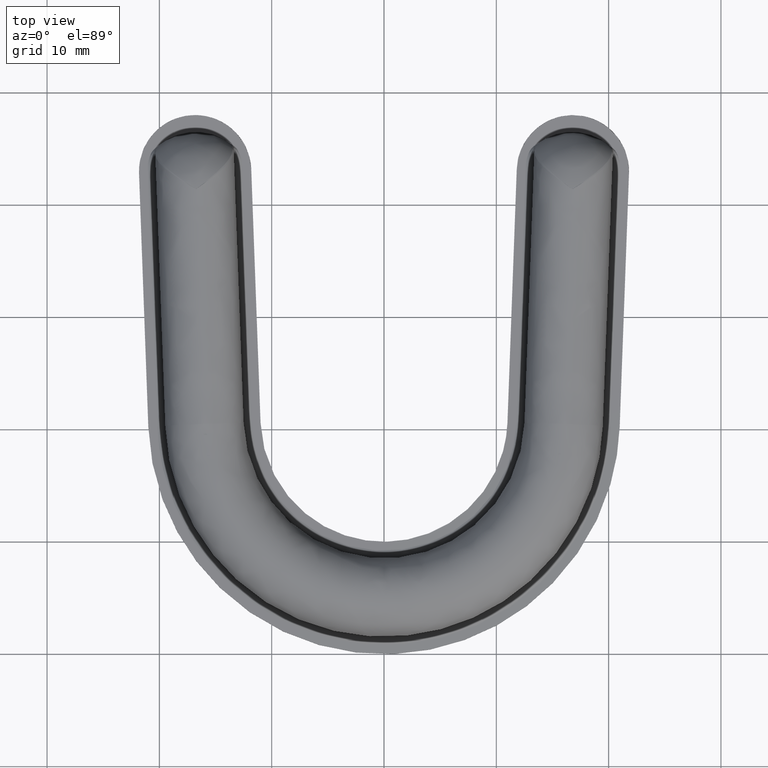
[diagram: clean part render]
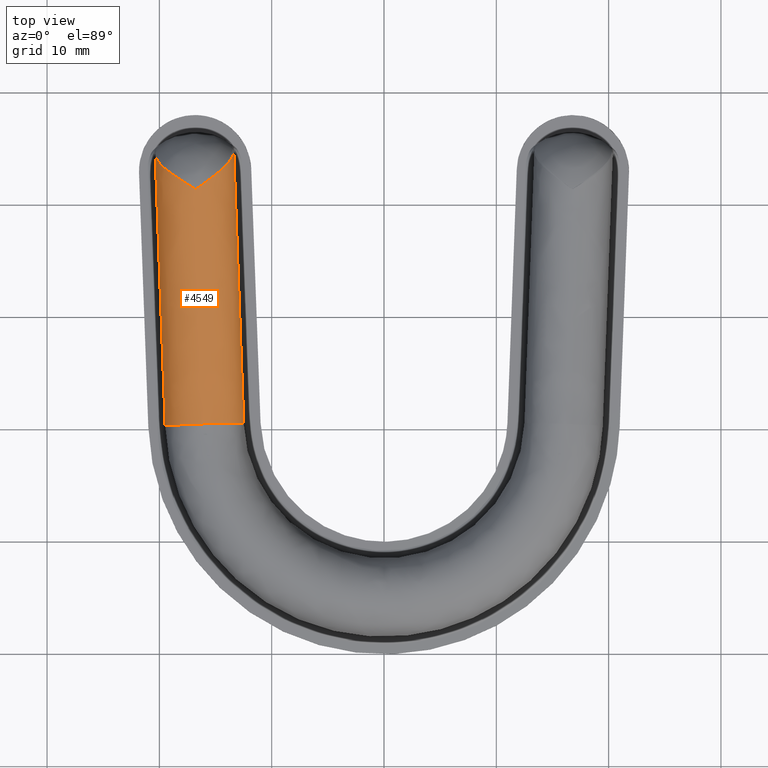
[diagram: same view with one face highlighted and labeled with its STEP entity id]
A machine part, top view. The second image highlights one B-rep face of the part: STEP entity #4549.
In plain terms, the highlighted face is a freeform B-spline surface patch.
Its self-contained STEP definition (entity closure, byte-faithful):
#2112=CARTESIAN_POINT('',(-16.754516114764598,41.300000246812402,6.0));
#2113=VERTEX_POINT('',#2112);
#2114=CARTESIAN_POINT('',(-20.372942667304500,44.468121021932902,2.500000000000000));
#2115=VERTEX_POINT('',#2114);
#2116=CARTESIAN_POINT('',(-16.754516114764598,41.300000246812402,6.0));
#2117=CARTESIAN_POINT('',(-16.782802582133630,41.317389389556482,5.999999999952378));
#2118=CARTESIAN_POINT('',(-16.811632465670261,41.335112370053032,5.999667302176053));
#2119=CARTESIAN_POINT('',(-16.868946240694459,41.370353576724582,5.998326717878334));
#2120=CARTESIAN_POINT('',(-16.897596496718990,41.387974032361178,5.997320384735197));
#2121=CARTESIAN_POINT('',(-16.983474603837760,41.440814295865330,5.993295827587855));
#2122=CARTESIAN_POINT('',(-17.040646230696819,41.476023086388658,5.989272173197057));
#2123=CARTESIAN_POINT('',(-17.211877523912950,41.581663798899847,5.973178511146691));
#2124=CARTESIAN_POINT('',(-17.325307453028209,41.651897467126823,5.957111312028850));
#2125=CARTESIAN_POINT('',(-17.549663827990280,41.791815146958193,5.914576607877827));
#2126=CARTESIAN_POINT('',(-17.660724665483329,41.861581053779091,5.888097273805047));
#2127=CARTESIAN_POINT('',(-17.825469790792450,41.966210206306982,5.840559503001300));
#2128=CARTESIAN_POINT('',(-17.880076798264248,42.001083272231313,5.823408907174088));
#2129=CARTESIAN_POINT('',(-17.988641575157189,42.070868221722513,5.786479307185945));
#2130=CARTESIAN_POINT('',(-18.042696321848329,42.105843547782783,5.766660750550980));
#2131=CARTESIAN_POINT('',(-18.309898734683951,42.280047510552990,5.661463967373337));
#2132=CARTESIAN_POINT('',(-18.513541862228479,42.417030103409978,5.558137154894050));
#2133=CARTESIAN_POINT('',(-18.802903839322450,42.621130241985362,5.375406070826515));
#2134=CARTESIAN_POINT('',(-18.896662469343472,42.688930994251827,5.309849218476309));
#2135=CARTESIAN_POINT('',(-19.033021621566920,42.790546408604250,5.204462478785839));
#2136=CARTESIAN_POINT('',(-19.077760616700871,42.824403962717142,5.168156861401357));
#2137=CARTESIAN_POINT('',(-19.165758791210660,42.892135826940432,5.093160012744462));
#2138=CARTESIAN_POINT('',(-19.209104424614580,42.926079525365687,5.054386282803243));
#2139=CARTESIAN_POINT('',(-19.420887317293712,43.095081482723870,4.855478711049133));
#2140=CARTESIAN_POINT('',(-19.573552528740681,43.227131451441942,4.681456855730632));
#2141=CARTESIAN_POINT('',(-19.776535709117262,43.422684525638793,4.398988882901743));
#2142=CARTESIAN_POINT('',(-19.839839801298002,43.487443986000343,4.301241098006154));
#2143=CARTESIAN_POINT('',(-19.957298623896179,43.616455721109148,4.098476691031345));
#2144=CARTESIAN_POINT('',(-20.011578880391749,43.680884575070351,3.993150160682541));
#2145=CARTESIAN_POINT('',(-20.084964864256499,43.776500122556349,3.831090498791101));
#2146=CARTESIAN_POINT('',(-20.108136926017931,43.808261771446723,3.776291532584735));
#2147=CARTESIAN_POINT('',(-20.151585259787531,43.871207890909119,3.665848188035428));
#2148=CARTESIAN_POINT('',(-20.171876014315728,43.902405775525231,3.610184342074302));
#2149=CARTESIAN_POINT('',(-20.228460629108952,43.995249649651363,3.441908114617712));
#2150=CARTESIAN_POINT('',(-20.260475472677872,44.056147386656313,3.328013639119325));
#2151=CARTESIAN_POINT('',(-20.339188874740731,44.236383504141152,2.981434201529449));
#2152=CARTESIAN_POINT('',(-20.368734670211310,44.353272134910362,2.743894330306517));
#2153=CARTESIAN_POINT('',(-20.372942667304500,44.468121021932902,2.500000000000000));
#2154=B_SPLINE_CURVE_WITH_KNOTS('',3,(#2116,#2117,#2118,#2119,#2120,#2121,#2122,#2123,#2124,#2125,#2126,#2127,#2128,#2129,#2130,#2131,#2132,#2133,#2134,#2135,#2136,#2137,#2138,#2139,#2140,#2141,#2142,#2143,#2144,#2145,#2146,#2147,#2148,#2149,#2150,#2151,#2152,#2153),.UNSPECIFIED.,.F.,.U.,(4,2,2,2,2,2,2,2,2,2,2,2,2,2,2,2,2,2,4),(0.0,0.015624974631166,0.031249974631168,0.062499974631171,0.124999974631177,0.187499974631182,0.218749974631184,0.249999974631186,0.374999974631192,0.437499974631193,0.468749974631193,0.499999974631192,0.624999974631187,0.687499974631184,0.749999974631181,0.781249974631179,0.812499974631178,0.874999974631173,0.999999974631164),.UNSPECIFIED.);
#2155=EDGE_CURVE('',#2113,#2115,#2154,.T.);
#2635=CARTESIAN_POINT('',(-13.377636503320179,44.724424888695097,2.500000000000000));
#2636=VERTEX_POINT('',#2635);
#2761=CARTESIAN_POINT('',(-13.377636503320179,44.724424888695097,2.500000000000000));
#2762=CARTESIAN_POINT('',(-13.373428506287800,44.609576003343598,2.743894317642664));
#2763=CARTESIAN_POINT('',(-13.394341097255300,44.490838608626170,2.981434176925752));
#2764=CARTESIAN_POINT('',(-13.459653649787210,44.305325467601563,3.328013597670133));
#2765=CARTESIAN_POINT('',(-13.487126115788220,44.242248151512250,3.441908067733182));
#2766=CARTESIAN_POINT('',(-13.536764634156640,44.145512325795082,3.610184287325686));
#2767=CARTESIAN_POINT('',(-13.554717901137000,44.112913203252887,3.665848130713754));
#2768=CARTESIAN_POINT('',(-13.593443297749459,44.046956287741992,3.776291470218773));
#2769=CARTESIAN_POINT('',(-13.614228889487460,44.013584056746190,3.831090434137550));
#2770=CARTESIAN_POINT('',(-13.680420893337400,43.912854455242652,3.993150089515156));
#2771=CARTESIAN_POINT('',(-13.729840660947870,43.844626094168511,4.098476616110065));
#2772=CARTESIAN_POINT('',(-13.837543374353430,43.707364574311072,4.301241016508550));
#2773=CARTESIAN_POINT('',(-13.895938587423119,43.638146123758013,4.398988798495448));
#2774=CARTESIAN_POINT('',(-14.084066799619290,43.428262960649327,4.681456763756602));
#2775=CARTESIAN_POINT('',(-14.226659160489270,43.285394929987952,4.855478615556254));
#2776=CARTESIAN_POINT('',(-14.425506516451430,43.101347724726743,5.054386185138556));
#2777=CARTESIAN_POINT('',(-14.466251903789770,43.064322980835861,5.093159915343092));
#2778=CARTESIAN_POINT('',(-14.549057463600100,42.990332968673670,5.168156764449219));
#2779=CARTESIAN_POINT('',(-14.591198780538370,42.953292171256187,5.204462382162445));
#2780=CARTESIAN_POINT('',(-14.719756025650319,42.841970376668343,5.309849123158909));
#2781=CARTESIAN_POINT('',(-14.808301553889670,42.767490107845568,5.375405976805139));
#2782=CARTESIAN_POINT('',(-15.081951472532831,42.542761546598911,5.558137066129864));
#2783=CARTESIAN_POINT('',(-15.275024088412330,42.391243524007621,5.661463883917156));
#2784=CARTESIAN_POINT('',(-15.528761681215450,42.197952628906123,5.766660676570838));
#2785=CARTESIAN_POINT('',(-15.580111972408311,42.159115324319572,5.786479235569049));
#2786=CARTESIAN_POINT('',(-15.683278743695499,42.081572655703802,5.823408840425243));
#2787=CARTESIAN_POINT('',(-15.735187298336690,42.042796922382529,5.840559438801416));
#2788=CARTESIAN_POINT('',(-15.891833858935870,41.926392168022453,5.888097217604661));
#2789=CARTESIAN_POINT('',(-15.997491391885729,41.848685827990131,5.914576557479466));
#2790=CARTESIAN_POINT('',(-16.211006928149239,41.692724779908787,5.957111274239165));
#2791=CARTESIAN_POINT('',(-16.318992969435740,41.614378561501240,5.973178480157523));
#2792=CARTESIAN_POINT('',(-16.482034281076491,41.496490298197109,5.989272153270415));
#2793=CARTESIAN_POINT('',(-16.536476010519401,41.457192060231492,5.993295811474099));
#2794=CARTESIAN_POINT('',(-16.618256966524338,41.398208867706501,5.997320374529513));
#2795=CARTESIAN_POINT('',(-16.645540925800379,41.378539015469883,5.998326709673790));
#2796=CARTESIAN_POINT('',(-16.700122094515908,41.339198013851721,5.999667299123936));
#2797=CARTESIAN_POINT('',(-16.727577741720818,41.319412734100787,5.999999998967283));
#2798=CARTESIAN_POINT('',(-16.754516114764598,41.300000246812402,6.0));
#2799=B_SPLINE_CURVE_WITH_KNOTS('',3,(#2761,#2762,#2763,#2764,#2765,#2766,#2767,#2768,#2769,#2770,#2771,#2772,#2773,#2774,#2775,#2776,#2777,#2778,#2779,#2780,#2781,#2782,#2783,#2784,#2785,#2786,#2787,#2788,#2789,#2790,#2791,#2792,#2793,#2794,#2795,#2796,#2797,#2798),.UNSPECIFIED.,.F.,.U.,(4,2,2,2,2,2,2,2,2,2,2,2,2,2,2,2,2,2,4),(0.0,0.125000000000010,0.187500000000014,0.218750000000015,0.250000000000016,0.312500000000017,0.375000000000018,0.500000000000019,0.531250000000018,0.562500000000018,0.625000000000016,0.750000000000014,0.781250000000012,0.812500000000011,0.875000000000009,0.937500000000007,0.968750000000005,0.984375000000002,1.0),.UNSPECIFIED.);
#2800=EDGE_CURVE('',#2636,#2113,#2799,.T.);
#4060=CARTESIAN_POINT('',(-19.486924054736150,20.286010322714951,2.500000000000000));
#4061=VERTEX_POINT('',#4060);
#4144=CARTESIAN_POINT('',(-12.491617895265600,20.542314312676702,2.500000000000000));
#4145=VERTEX_POINT('',#4144);
#4161=CARTESIAN_POINT('',(-12.491617895265600,20.542314312676702,2.500000000000000));
#4162=CARTESIAN_POINT('',(-12.491617895265366,20.542314312676734,6.0));
#4163=CARTESIAN_POINT('',(-15.989270975000750,20.414162317695851,6.0));
#4164=CARTESIAN_POINT('',(-19.486924054736132,20.286010322714972,6.0));
#4165=CARTESIAN_POINT('',(-19.486924054736139,20.286010322714969,2.500000000000000));
#4173=(BOUNDED_CURVE()B_SPLINE_CURVE(2,(#4161,#4162,#4163,#4164,#4165),.UNSPECIFIED.,.F.,.U.)B_SPLINE_CURVE_WITH_KNOTS((3,2,3),(0.0,0.500000000000000,1.0),.UNSPECIFIED.)CURVE()GEOMETRIC_REPRESENTATION_ITEM()RATIONAL_B_SPLINE_CURVE((1.0,0.707106781186547,1.0,0.707106781186547,1.0))REPRESENTATION_ITEM(''));
#4174=EDGE_CURVE('',#4145,#4061,#4173,.T.);
#4499=CARTESIAN_POINT('',(-13.377636503320179,44.724424888695097,2.500000000000000));
#4500=CARTESIAN_POINT('',(-12.491617895265600,20.542314312676702,2.500000000000000));
#4501=QUASI_UNIFORM_CURVE('',1,(#4499,#4500),.UNSPECIFIED.,.F.,.U.);
#4502=EDGE_CURVE('',#2636,#4145,#4501,.T.);
#4513=CARTESIAN_POINT('',(-20.372942667304500,44.468121021932902,2.500000000000000));
#4514=CARTESIAN_POINT('',(-19.486924054736150,20.286010322714951,2.500000000000000));
#4515=QUASI_UNIFORM_CURVE('',1,(#4513,#4514),.UNSPECIFIED.,.F.,.U.);
#4516=EDGE_CURVE('',#2115,#4061,#4515,.T.);
#4524=CARTESIAN_POINT('',(-20.393894574264319,45.072717703901347,2.408380680922439));
#4525=CARTESIAN_POINT('',(-19.463021269434488,19.666387650535491,2.408380680922439));
#4526=CARTESIAN_POINT('',(-20.490376452596262,45.069182663431114,6.095347254950148));
#4527=CARTESIAN_POINT('',(-19.559503147766435,19.662852610065251,6.095347254950149));
#4528=CARTESIAN_POINT('',(-16.805882169016421,45.204180412542399,5.998800637414451));
#4529=CARTESIAN_POINT('',(-15.875008864186590,19.797850359176529,5.998800637414451));
#4530=CARTESIAN_POINT('',(-13.121387885436580,45.339178161653685,5.902254019878753));
#4531=CARTESIAN_POINT('',(-12.190514580606751,19.932848108287821,5.902254019878754));
#4532=CARTESIAN_POINT('',(-13.410569070310260,45.328582729543157,2.225393164952546));
#4533=CARTESIAN_POINT('',(-12.479695765480431,19.922252676177301,2.225393164952550));
#4541=(BOUNDED_SURFACE()B_SPLINE_SURFACE(1,2,((#4524,#4526,#4528,#4530,#4532),(#4525,#4527,#4529,#4531,#4533)),.UNSPECIFIED.,.F.,.F.,.U.)B_SPLINE_SURFACE_WITH_KNOTS((2,2),(3,2,3),(0.0,25.423377664862048),(0.0,6.014874683535706,12.029749367071410),.UNSPECIFIED.)GEOMETRIC_REPRESENTATION_ITEM()RATIONAL_B_SPLINE_SURFACE(((1.0,0.688354575693754,1.0,0.688354575693754,1.0),(1.0,0.688354575693754,1.0,0.688354575693754,1.0)))REPRESENTATION_ITEM('')SURFACE());
#4542=ORIENTED_EDGE('',*,*,#4502,.F.);
#4543=ORIENTED_EDGE('',*,*,#2800,.T.);
#4544=ORIENTED_EDGE('',*,*,#2155,.T.);
#4545=ORIENTED_EDGE('',*,*,#4516,.T.);
#4546=ORIENTED_EDGE('',*,*,#4174,.F.);
#4547=EDGE_LOOP('',(#4542,#4543,#4544,#4545,#4546));
#4548=FACE_OUTER_BOUND('',#4547,.T.);
#4549=ADVANCED_FACE('',(#4548),#4541,.T.);